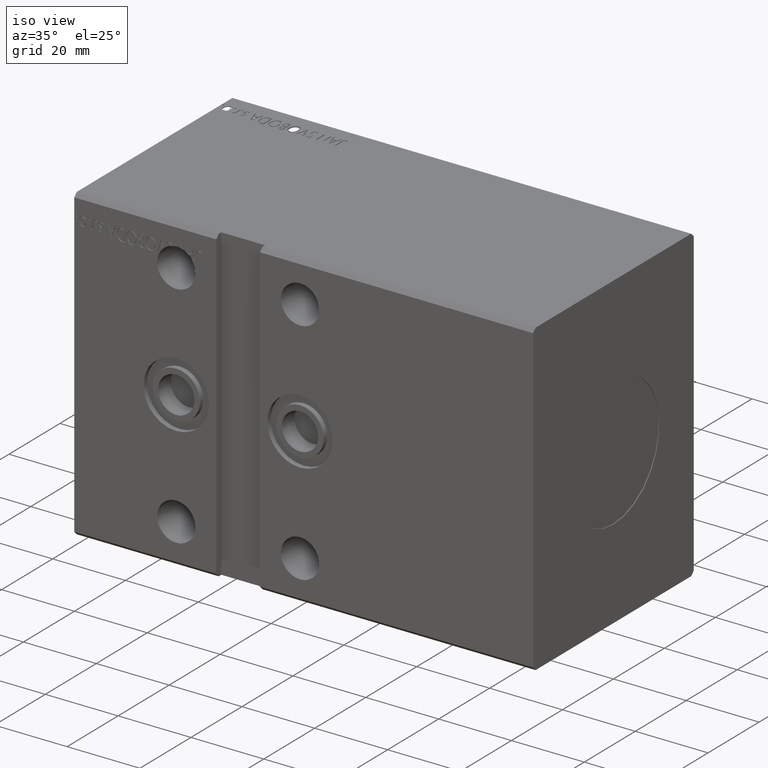
[diagram: clean part render]
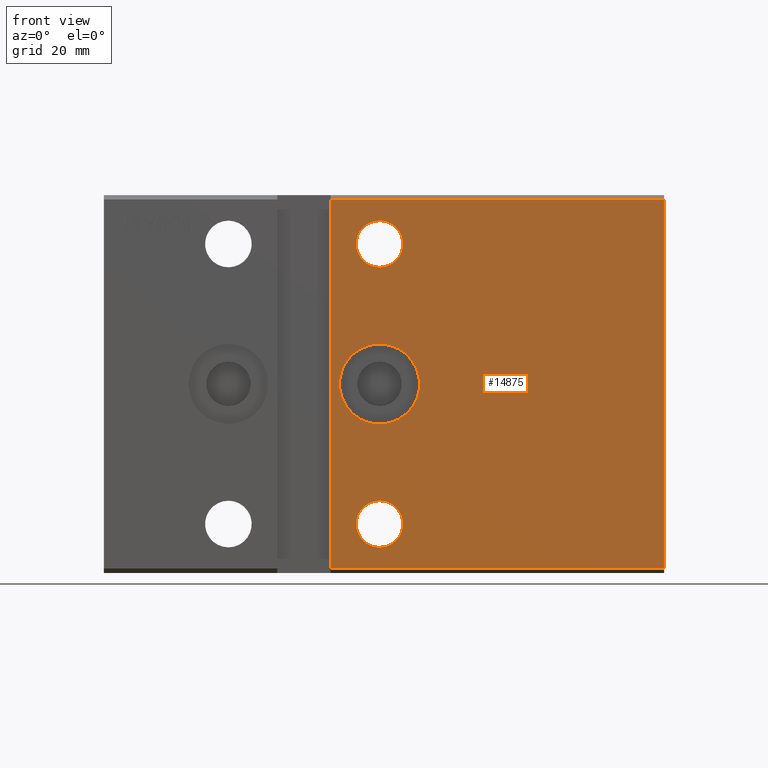
[diagram: tour spotlight — one face highlighted and labeled with its STEP entity id]
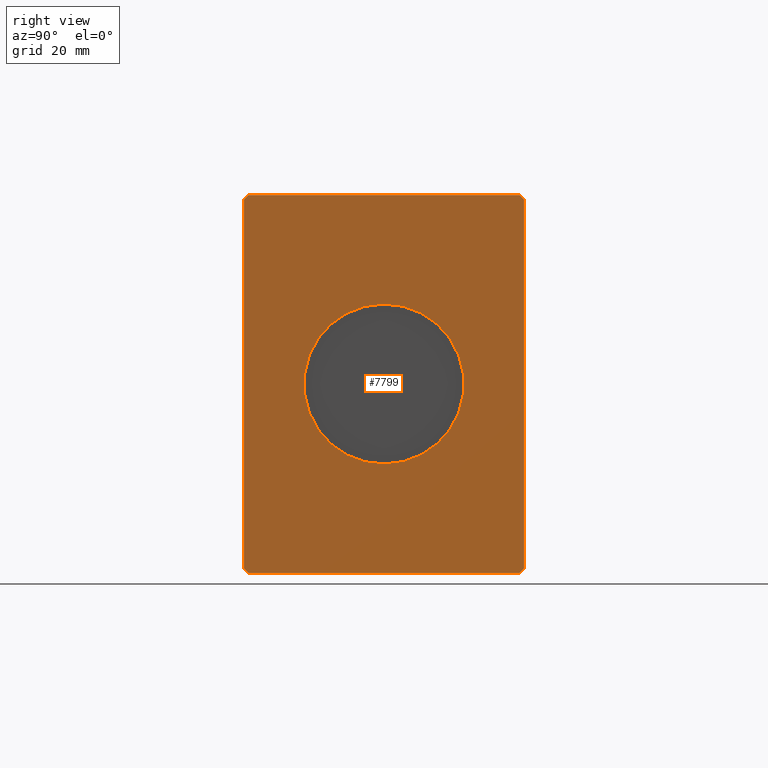
[diagram: tour spotlight — one face highlighted and labeled with its STEP entity id]
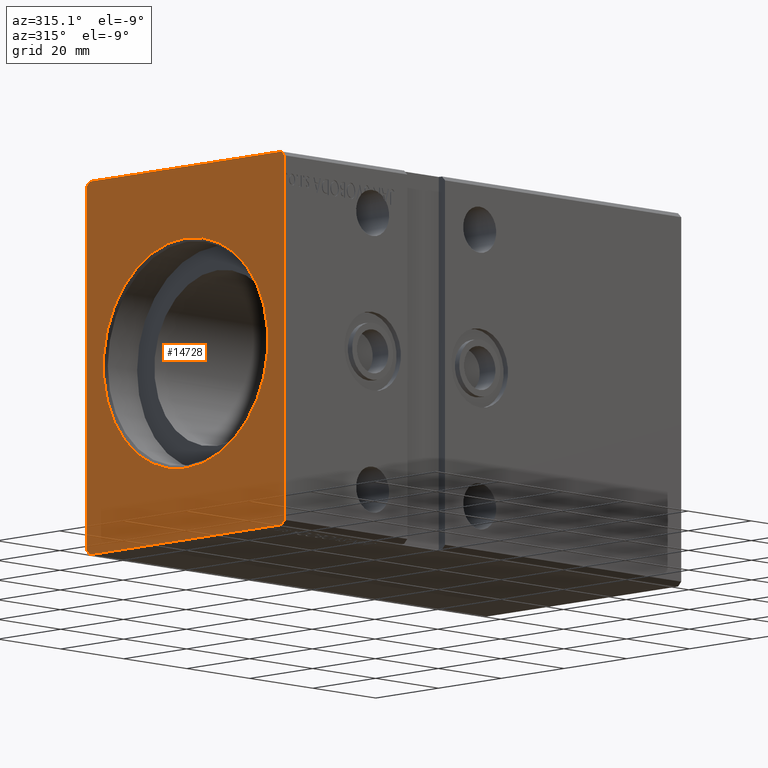
[diagram: tour spotlight — one face highlighted and labeled with its STEP entity id]
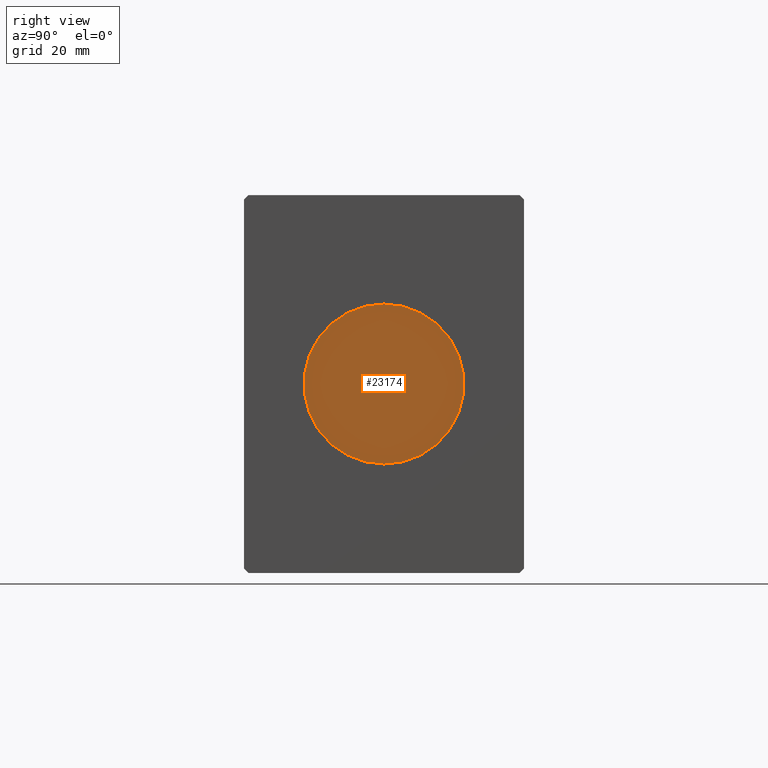
[diagram: tour spotlight — one face highlighted and labeled with its STEP entity id]
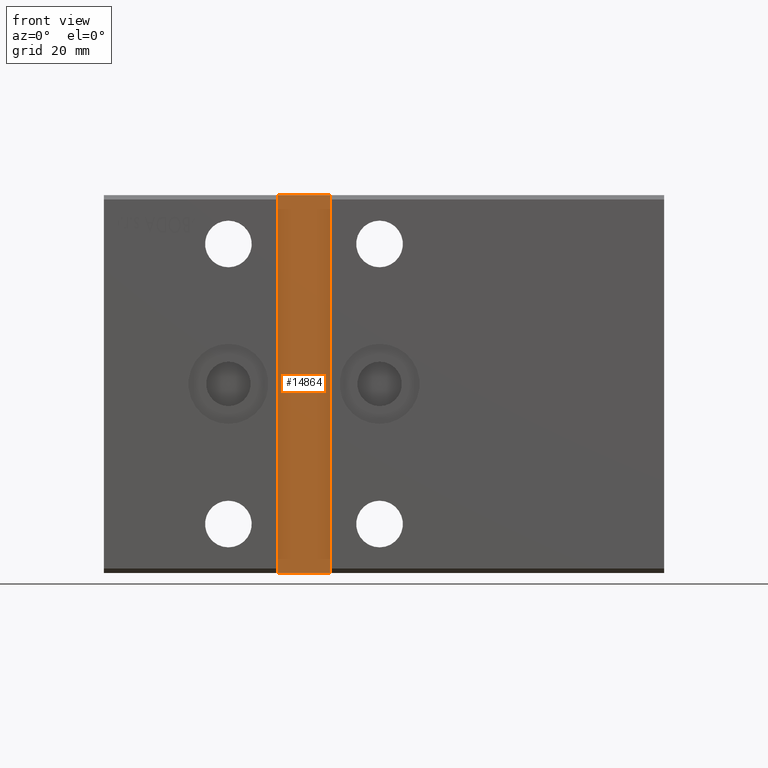
[diagram: tour spotlight — one face highlighted and labeled with its STEP entity id]
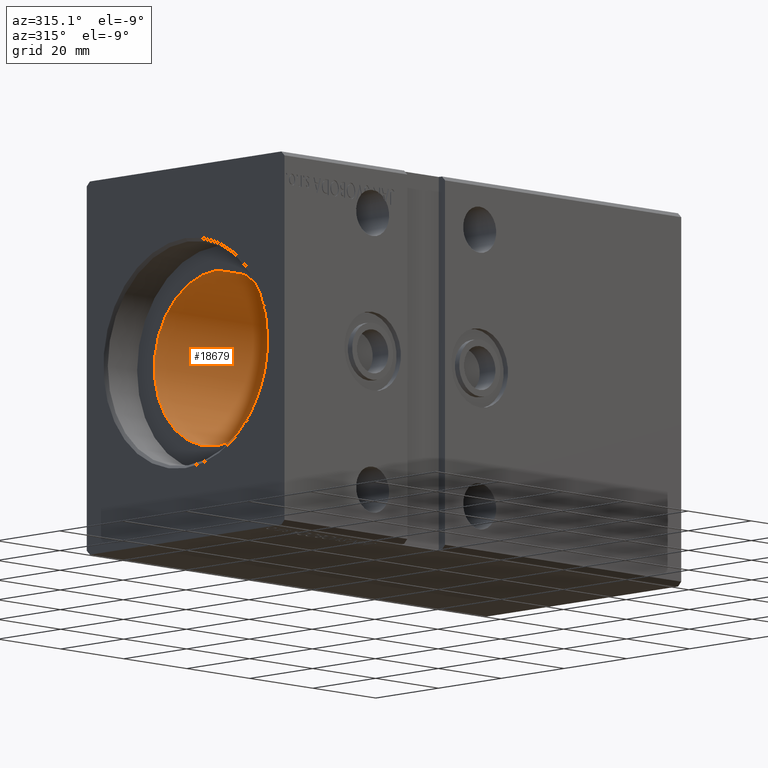
[diagram: tour spotlight — one face highlighted and labeled with its STEP entity id]
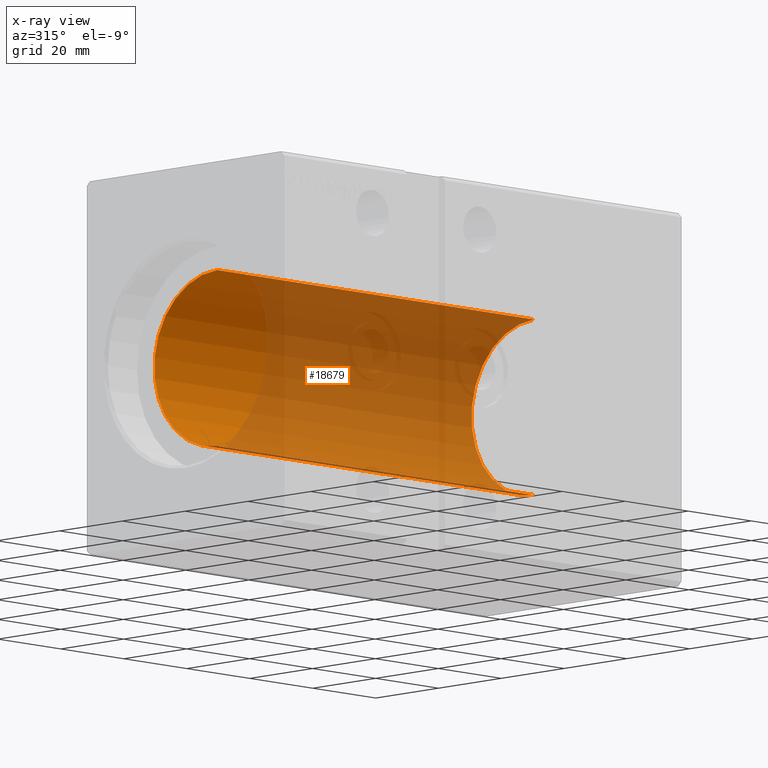
[diagram: x-ray of the same camera — body ghosted, this tour face saturated]
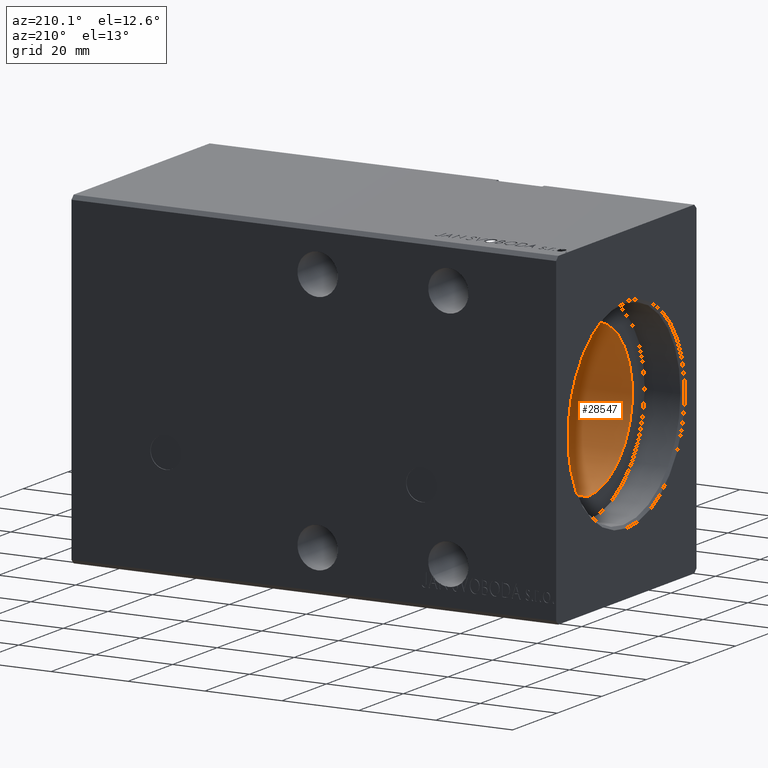
[diagram: tour spotlight — one face highlighted and labeled with its STEP entity id]
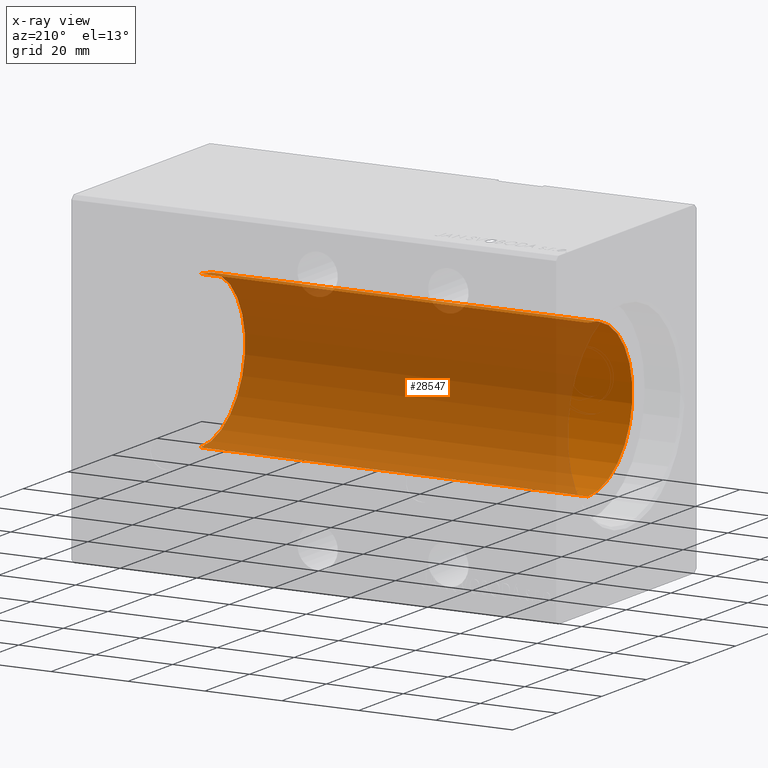
[diagram: x-ray of the same camera — body ghosted, this tour face saturated]
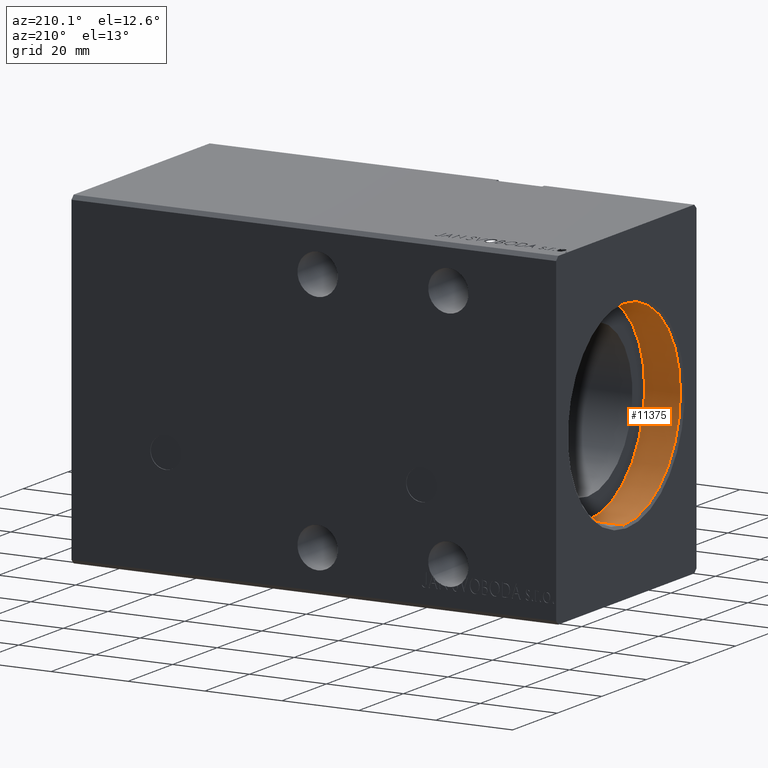
[diagram: tour spotlight — one face highlighted and labeled with its STEP entity id]
A machine part: a face-by-face anatomy tour. The part has 772 B-rep faces; the first image is the clean iso view, then the 8 largest visible faces are spotlighted one at a time (largest first), each with its STEP entity span.

Face 1 — front view, entity #14875. In plain terms, the highlighted planar face has unit normal (-0, 1, 0).
Definition (entity closure, byte-faithful):
#152 = DIRECTION ( 'NONE',  ( -0.000000000000000000, 1.000000000000000000, 0.000000000000000000 ) ) ;
#775 = DIRECTION ( 'NONE',  ( 0.000000000000000000, 0.000000000000000000, 1.000000000000000000 ) ) ;
#793 = CARTESIAN_POINT ( 'NONE',  ( 62.00000000000000711, -31.50000000000000000, -31.50000000000000000 ) ) ;
#1011 = ORIENTED_EDGE ( 'NONE', *, *, #8095, .T. ) ;
#1936 = CARTESIAN_POINT ( 'NONE',  ( 62.00000000000000000, -31.50000000000000000, 26.24999999999999645 ) ) ;
#2300 = EDGE_CURVE ( 'NONE', #32141, #36238, #6024, .T. ) ;
#2637 = FACE_BOUND ( 'NONE', #21555, .T. ) ;
#2684 = VECTOR ( 'NONE', #26664, 1000.000000000000000 ) ;
#3110 = CARTESIAN_POINT ( 'NONE',  ( 62.00000000000000711, -31.50000000000000000, -2.775094786806226635E-15 ) ) ;
#3359 = LINE ( 'NONE', #12810, #9154 ) ;
#6024 = CIRCLE ( 'NONE', #29027, 5.249999999999997335 ) ;
#6438 = CIRCLE ( 'NONE', #11717, 9.000000000000003553 ) ;
#6507 = ORIENTED_EDGE ( 'NONE', *, *, #16858, .F. ) ;
#6524 = CARTESIAN_POINT ( 'NONE',  ( 51.00000000000000000, -31.50000000000000000, 42.49999999999999289 ) ) ;
#6780 = CARTESIAN_POINT ( 'NONE',  ( 62.00000000000000711, -31.50000000000000000, -31.50000000000000000 ) ) ;
#7563 = CARTESIAN_POINT ( 'NONE',  ( 62.00000000000000711, -31.50000000000000000, 9.000000000000000000 ) ) ;
#7939 = LINE ( 'NONE', #38795, #2684 ) ;
#8029 = EDGE_CURVE ( 'NONE', #14210, #22415, #28121, .T. ) ;
#8041 = EDGE_LOOP ( 'NONE', ( #24446, #6507, #24137, #25378 ) ) ;
#8095 = EDGE_CURVE ( 'NONE', #19366, #8506, #6438, .T. ) ;
#8268 = CARTESIAN_POINT ( 'NONE',  ( 62.00000000000000711, -31.50000000000000000, -9.000000000000007105 ) ) ;
#8271 = DIRECTION ( 'NONE',  ( 0.000000000000000000, -1.000000000000000000, -0.000000000000000000 ) ) ;
#8441 = EDGE_CURVE ( 'NONE', #36238, #32141, #26194, .T. ) ;
#8506 = VERTEX_POINT ( 'NONE', #7563 ) ;
#8802 = CARTESIAN_POINT ( 'NONE',  ( 126.0000000000000000, -31.50000000000000000, 41.49999999999999289 ) ) ;
#9154 = VECTOR ( 'NONE', #15900, 1000.000000000000000 ) ;
#9649 = VERTEX_POINT ( 'NONE', #26480 ) ;
#10894 = EDGE_CURVE ( 'NONE', #17370, #9649, #3359, .T. ) ;
#11717 = AXIS2_PLACEMENT_3D ( 'NONE', #3110, #19345, #34370 ) ;
#12262 = CARTESIAN_POINT ( 'NONE',  ( 126.0000000000000000, -31.50000000000000000, -41.50000000000000711 ) ) ;
#12492 = FACE_OUTER_BOUND ( 'NONE', #8041, .T. ) ;
#12634 = EDGE_CURVE ( 'NONE', #22415, #14210, #29556, .T. ) ;
#12810 = CARTESIAN_POINT ( 'NONE',  ( 126.0000000000000000, -31.50000000000000000, 41.49999999999999289 ) ) ;
#13663 = AXIS2_PLACEMENT_3D ( 'NONE', #33975, #8271, #21246 ) ;
#13927 = ORIENTED_EDGE ( 'NONE', *, *, #2300, .T. ) ;
#14210 = VERTEX_POINT ( 'NONE', #24355 ) ;
#14242 = VECTOR ( 'NONE', #40258, 1000.000000000000000 ) ;
#14875 = ADVANCED_FACE ( 'NONE', ( #30810, #2637, #12492, #34482 ), #24652, .F. ) ;
#15057 = CARTESIAN_POINT ( 'NONE',  ( 62.00000000000000711, -31.50000000000000000, -36.75000000000000000 ) ) ;
#15139 = DIRECTION ( 'NONE',  ( -0.000000000000000000, 1.000000000000000000, 5.507058653894625853E-17 ) ) ;
#15335 = CARTESIAN_POINT ( 'NONE',  ( 62.00000000000000711, -31.50000000000000000, -2.775094786806226635E-15 ) ) ;
#15455 = CARTESIAN_POINT ( 'NONE',  ( 62.00000000000000711, -31.50000000000000000, -26.25000000000000355 ) ) ;
#15532 = CARTESIAN_POINT ( 'NONE',  ( 51.00000000000000000, -31.50000000000000000, -41.50000000000000711 ) ) ;
#15759 = LINE ( 'NONE', #25237, #14242 ) ;
#15900 = DIRECTION ( 'NONE',  ( -1.000000000000000000, -0.000000000000000000, -0.000000000000000000 ) ) ;
#15985 = LINE ( 'NONE', #6524, #40416 ) ;
#16858 = EDGE_CURVE ( 'NONE', #29813, #9649, #15985, .T. ) ;
#17370 = VERTEX_POINT ( 'NONE', #30357 ) ;
#19220 = VERTEX_POINT ( 'NONE', #12262 ) ;
#19345 = DIRECTION ( 'NONE',  ( -0.000000000000000000, 1.000000000000000000, 5.507058653894625853E-17 ) ) ;
#19366 = VERTEX_POINT ( 'NONE', #8268 ) ;
#19490 = DIRECTION ( 'NONE',  ( -0.000000000000000000, 1.000000000000000000, 0.000000000000000000 ) ) ;
#19704 = DIRECTION ( 'NONE',  ( 0.000000000000000000, 0.000000000000000000, 1.000000000000000000 ) ) ;
#21246 = DIRECTION ( 'NONE',  ( 0.000000000000000000, 0.000000000000000000, 1.000000000000000000 ) ) ;
#21555 = EDGE_LOOP ( 'NONE', ( #30476, #13927 ) ) ;
#21631 = EDGE_CURVE ( 'NONE', #17370, #19220, #15759, .T. ) ;
#21705 = AXIS2_PLACEMENT_3D ( 'NONE', #28742, #25667, #775 ) ;
#22389 = ORIENTED_EDGE ( 'NONE', *, *, #33418, .T. ) ;
#22415 = VERTEX_POINT ( 'NONE', #1936 ) ;
#24137 = ORIENTED_EDGE ( 'NONE', *, *, #32369, .F. ) ;
#24355 = CARTESIAN_POINT ( 'NONE',  ( 62.00000000000000000, -31.50000000000000000, 36.75000000000000711 ) ) ;
#24446 = ORIENTED_EDGE ( 'NONE', *, *, #10894, .T. ) ;
#24627 = ORIENTED_EDGE ( 'NONE', *, *, #12634, .F. ) ;
#24652 = PLANE ( 'NONE',  #27573 ) ;
#25237 = CARTESIAN_POINT ( 'NONE',  ( 126.0000000000000000, -31.50000000000000000, 41.49999999999999289 ) ) ;
#25258 = DIRECTION ( 'NONE',  ( -0.000000000000000000, -0.000000000000000000, 1.000000000000000000 ) ) ;
#25357 = EDGE_LOOP ( 'NONE', ( #1011, #22389 ) ) ;
#25378 = ORIENTED_EDGE ( 'NONE', *, *, #21631, .F. ) ;
#25667 = DIRECTION ( 'NONE',  ( 0.000000000000000000, -1.000000000000000000, -0.000000000000000000 ) ) ;
#25718 = DIRECTION ( 'NONE',  ( -0.000000000000000000, 1.000000000000000000, 0.000000000000000000 ) ) ;
#26194 = CIRCLE ( 'NONE', #34709, 5.249999999999997335 ) ;
#26480 = CARTESIAN_POINT ( 'NONE',  ( 51.00000000000000000, -31.50000000000000000, 41.49999999999999289 ) ) ;
#26664 = DIRECTION ( 'NONE',  ( -1.000000000000000000, -0.000000000000000000, -0.000000000000000000 ) ) ;
#27573 = AXIS2_PLACEMENT_3D ( 'NONE', #8802, #152, #28526 ) ;
#27705 = DIRECTION ( 'NONE',  ( 0.000000000000000000, 0.000000000000000000, 1.000000000000000000 ) ) ;
#28121 = CIRCLE ( 'NONE', #13663, 5.250000000000004441 ) ;
#28526 = DIRECTION ( 'NONE',  ( 0.000000000000000000, -0.000000000000000000, 1.000000000000000000 ) ) ;
#28742 = CARTESIAN_POINT ( 'NONE',  ( 62.00000000000000000, -31.50000000000000000, 31.50000000000000000 ) ) ;
#29027 = AXIS2_PLACEMENT_3D ( 'NONE', #6780, #25718, #32282 ) ;
#29556 = CIRCLE ( 'NONE', #21705, 5.250000000000004441 ) ;
#29603 = AXIS2_PLACEMENT_3D ( 'NONE', #15335, #15139, #27705 ) ;
#29813 = VERTEX_POINT ( 'NONE', #15532 ) ;
#30357 = CARTESIAN_POINT ( 'NONE',  ( 126.0000000000000000, -31.50000000000000000, 41.49999999999999289 ) ) ;
#30476 = ORIENTED_EDGE ( 'NONE', *, *, #8441, .T. ) ;
#30810 = FACE_BOUND ( 'NONE', #25357, .T. ) ;
#32141 = VERTEX_POINT ( 'NONE', #15455 ) ;
#32282 = DIRECTION ( 'NONE',  ( 0.000000000000000000, 0.000000000000000000, 1.000000000000000000 ) ) ;
#32369 = EDGE_CURVE ( 'NONE', #19220, #29813, #7939, .T. ) ;
#32879 = CIRCLE ( 'NONE', #29603, 9.000000000000003553 ) ;
#33418 = EDGE_CURVE ( 'NONE', #8506, #19366, #32879, .T. ) ;
#33975 = CARTESIAN_POINT ( 'NONE',  ( 62.00000000000000000, -31.50000000000000000, 31.50000000000000000 ) ) ;
#34370 = DIRECTION ( 'NONE',  ( 0.000000000000000000, 0.000000000000000000, 1.000000000000000000 ) ) ;
#34482 = FACE_BOUND ( 'NONE', #39462, .T. ) ;
#34709 = AXIS2_PLACEMENT_3D ( 'NONE', #793, #19490, #19704 ) ;
#35085 = ORIENTED_EDGE ( 'NONE', *, *, #8029, .F. ) ;
#36238 = VERTEX_POINT ( 'NONE', #15057 ) ;
#38795 = CARTESIAN_POINT ( 'NONE',  ( 126.0000000000000000, -31.50000000000000000, -41.50000000000000711 ) ) ;
#39462 = EDGE_LOOP ( 'NONE', ( #24627, #35085 ) ) ;
#40258 = DIRECTION ( 'NONE',  ( 0.000000000000000000, 0.000000000000000000, -1.000000000000000000 ) ) ;
#40416 = VECTOR ( 'NONE', #25258, 1000.000000000000000 ) ;

Face 2 — right view, entity #7799. In plain terms, the highlighted planar face has unit normal (1, 0, 0).
Definition (entity closure, byte-faithful):
#88 = CARTESIAN_POINT ( 'NONE',  ( 126.0000000000000000, -30.50000000000000711, -42.50000000000000711 ) ) ;
#482 = ORIENTED_EDGE ( 'NONE', *, *, #29244, .T. ) ;
#566 = VERTEX_POINT ( 'NONE', #29104 ) ;
#1475 = ORIENTED_EDGE ( 'NONE', *, *, #24987, .T. ) ;
#1626 = DIRECTION ( 'NONE',  ( 0.000000000000000000, 0.7071067811865451302, -0.7071067811865500152 ) ) ;
#2097 = LINE ( 'NONE', #8867, #15252 ) ;
#2235 = EDGE_CURVE ( 'NONE', #11296, #6461, #2097, .T. ) ;
#2389 = VERTEX_POINT ( 'NONE', #23643 ) ;
#2413 = EDGE_CURVE ( 'NONE', #35182, #566, #26420, .T. ) ;
#3432 = DIRECTION ( 'NONE',  ( 0.000000000000000000, 0.000000000000000000, -1.000000000000000000 ) ) ;
#4906 = CARTESIAN_POINT ( 'NONE',  ( 126.0000000000000000, 0.000000000000000000, 0.000000000000000000 ) ) ;
#6461 = VERTEX_POINT ( 'NONE', #8160 ) ;
#6540 = CARTESIAN_POINT ( 'NONE',  ( 126.0000000000000000, 0.000000000000000000, -18.00000000000000000 ) ) ;
#6869 = EDGE_CURVE ( 'NONE', #2389, #17370, #30732, .T. ) ;
#7390 = CARTESIAN_POINT ( 'NONE',  ( 126.0000000000000000, -31.50000000000000000, -41.50000000000000711 ) ) ;
#7799 = ADVANCED_FACE ( 'NONE', ( #21892, #22697 ), #34821, .T. ) ;
#8160 = CARTESIAN_POINT ( 'NONE',  ( 126.0000000000000000, 31.50000000000001421, 41.49999999999999289 ) ) ;
#8327 = ORIENTED_EDGE ( 'NONE', *, *, #2413, .F. ) ;
#8375 = VECTOR ( 'NONE', #14741, 1000.000000000000000 ) ;
#8510 = VECTOR ( 'NONE', #14365, 1000.000000000000114 ) ;
#8831 = ORIENTED_EDGE ( 'NONE', *, *, #31422, .T. ) ;
#8867 = CARTESIAN_POINT ( 'NONE',  ( 126.0000000000000000, 31.50000000000001421, -41.50000000000000711 ) ) ;
#8905 = ORIENTED_EDGE ( 'NONE', *, *, #2235, .T. ) ;
#11296 = VERTEX_POINT ( 'NONE', #34960 ) ;
#11515 = EDGE_CURVE ( 'NONE', #6461, #15841, #17459, .T. ) ;
#12186 = ORIENTED_EDGE ( 'NONE', *, *, #21631, .T. ) ;
#12247 = VERTEX_POINT ( 'NONE', #32074 ) ;
#12262 = CARTESIAN_POINT ( 'NONE',  ( 126.0000000000000000, -31.50000000000000000, -41.50000000000000711 ) ) ;
#12357 = AXIS2_PLACEMENT_3D ( 'NONE', #13016, #35227, #16514 ) ;
#12431 = AXIS2_PLACEMENT_3D ( 'NONE', #31610, #28128, #3432 ) ;
#13016 = CARTESIAN_POINT ( 'NONE',  ( 126.0000000000000000, 0.000000000000000000, 0.000000000000000000 ) ) ;
#13922 = AXIS2_PLACEMENT_3D ( 'NONE', #4906, #33708, #35961 ) ;
#14242 = VECTOR ( 'NONE', #40258, 1000.000000000000000 ) ;
#14365 = DIRECTION ( 'NONE',  ( 0.000000000000000000, -0.7071067811865474617, 0.7071067811865474617 ) ) ;
#14741 = DIRECTION ( 'NONE',  ( 0.000000000000000000, -1.000000000000000000, 0.000000000000000000 ) ) ;
#14893 = CARTESIAN_POINT ( 'NONE',  ( 126.0000000000000000, -30.50000000000000355, 42.49999999999999289 ) ) ;
#15252 = VECTOR ( 'NONE', #23696, 1000.000000000000000 ) ;
#15759 = LINE ( 'NONE', #25237, #14242 ) ;
#15841 = VERTEX_POINT ( 'NONE', #18474 ) ;
#16514 = DIRECTION ( 'NONE',  ( 0.000000000000000000, 0.000000000000000000, -1.000000000000000000 ) ) ;
#17370 = VERTEX_POINT ( 'NONE', #30357 ) ;
#17459 = LINE ( 'NONE', #36998, #8510 ) ;
#17752 = VECTOR ( 'NONE', #36871, 999.9999999999998863 ) ;
#18474 = CARTESIAN_POINT ( 'NONE',  ( 126.0000000000000000, 30.50000000000001421, 42.49999999999999289 ) ) ;
#19123 = EDGE_CURVE ( 'NONE', #15841, #2389, #29760, .T. ) ;
#19220 = VERTEX_POINT ( 'NONE', #12262 ) ;
#19661 = VECTOR ( 'NONE', #1626, 1000.000000000000114 ) ;
#19935 = VERTEX_POINT ( 'NONE', #88 ) ;
#21631 = EDGE_CURVE ( 'NONE', #17370, #19220, #15759, .T. ) ;
#21892 = FACE_BOUND ( 'NONE', #34021, .T. ) ;
#22581 = ORIENTED_EDGE ( 'NONE', *, *, #6869, .T. ) ;
#22697 = FACE_OUTER_BOUND ( 'NONE', #27182, .T. ) ;
#23643 = CARTESIAN_POINT ( 'NONE',  ( 126.0000000000000000, -30.50000000000000355, 42.49999999999999289 ) ) ;
#23696 = DIRECTION ( 'NONE',  ( 0.000000000000000000, 0.000000000000000000, 1.000000000000000000 ) ) ;
#23878 = DIRECTION ( 'NONE',  ( 0.000000000000000000, 1.000000000000000000, 0.000000000000000000 ) ) ;
#24987 = EDGE_CURVE ( 'NONE', #19935, #12247, #40104, .T. ) ;
#25237 = CARTESIAN_POINT ( 'NONE',  ( 126.0000000000000000, -31.50000000000000000, 41.49999999999999289 ) ) ;
#26420 = CIRCLE ( 'NONE', #13922, 18.00000000000000000 ) ;
#27182 = EDGE_LOOP ( 'NONE', ( #35228, #33517, #22581, #12186, #482, #1475, #8831, #8905 ) ) ;
#27663 = DIRECTION ( 'NONE',  ( 0.000000000000000000, -0.7071067811865462405, -0.7071067811865489050 ) ) ;
#27781 = CARTESIAN_POINT ( 'NONE',  ( 126.0000000000000000, -30.50000000000000711, -42.50000000000000711 ) ) ;
#28128 = DIRECTION ( 'NONE',  ( 1.000000000000000000, 0.000000000000000000, 0.000000000000000000 ) ) ;
#28786 = EDGE_CURVE ( 'NONE', #566, #35182, #30841, .T. ) ;
#29104 = CARTESIAN_POINT ( 'NONE',  ( 126.0000000000000000, 2.204364238465235428E-15, 18.00000000000000000 ) ) ;
#29244 = EDGE_CURVE ( 'NONE', #19220, #19935, #35568, .T. ) ;
#29760 = LINE ( 'NONE', #33667, #8375 ) ;
#30290 = LINE ( 'NONE', #36453, #17752 ) ;
#30357 = CARTESIAN_POINT ( 'NONE',  ( 126.0000000000000000, -31.50000000000000000, 41.49999999999999289 ) ) ;
#30732 = LINE ( 'NONE', #14893, #37218 ) ;
#30841 = CIRCLE ( 'NONE', #12431, 18.00000000000000000 ) ;
#31422 = EDGE_CURVE ( 'NONE', #12247, #11296, #30290, .T. ) ;
#31610 = CARTESIAN_POINT ( 'NONE',  ( 126.0000000000000000, 0.000000000000000000, 0.000000000000000000 ) ) ;
#32074 = CARTESIAN_POINT ( 'NONE',  ( 126.0000000000000000, 30.50000000000001776, -42.50000000000000711 ) ) ;
#33517 = ORIENTED_EDGE ( 'NONE', *, *, #19123, .T. ) ;
#33667 = CARTESIAN_POINT ( 'NONE',  ( 126.0000000000000000, 30.50000000000001421, 42.49999999999999289 ) ) ;
#33708 = DIRECTION ( 'NONE',  ( 1.000000000000000000, 0.000000000000000000, 0.000000000000000000 ) ) ;
#34008 = VECTOR ( 'NONE', #23878, 1000.000000000000000 ) ;
#34021 = EDGE_LOOP ( 'NONE', ( #8327, #39189 ) ) ;
#34821 = PLANE ( 'NONE',  #12357 ) ;
#34960 = CARTESIAN_POINT ( 'NONE',  ( 126.0000000000000000, 31.50000000000001421, -41.50000000000000711 ) ) ;
#35182 = VERTEX_POINT ( 'NONE', #6540 ) ;
#35227 = DIRECTION ( 'NONE',  ( 1.000000000000000000, 0.000000000000000000, 0.000000000000000000 ) ) ;
#35228 = ORIENTED_EDGE ( 'NONE', *, *, #11515, .T. ) ;
#35568 = LINE ( 'NONE', #7390, #19661 ) ;
#35961 = DIRECTION ( 'NONE',  ( 0.000000000000000000, 0.000000000000000000, -1.000000000000000000 ) ) ;
#36453 = CARTESIAN_POINT ( 'NONE',  ( 126.0000000000000000, 30.50000000000001776, -42.50000000000000711 ) ) ;
#36871 = DIRECTION ( 'NONE',  ( 0.000000000000000000, 0.7071067811865462405, 0.7071067811865489050 ) ) ;
#36998 = CARTESIAN_POINT ( 'NONE',  ( 126.0000000000000000, 31.50000000000001421, 41.49999999999999289 ) ) ;
#37218 = VECTOR ( 'NONE', #27663, 999.9999999999998863 ) ;
#39189 = ORIENTED_EDGE ( 'NONE', *, *, #28786, .F. ) ;
#40104 = LINE ( 'NONE', #27781, #34008 ) ;
#40258 = DIRECTION ( 'NONE',  ( 0.000000000000000000, 0.000000000000000000, -1.000000000000000000 ) ) ;

Face 3 — auxiliary view, entity #14728. In plain terms, the highlighted planar face has unit normal (1, 0, 0).
Definition (entity closure, byte-faithful):
#35 = ORIENTED_EDGE ( 'NONE', *, *, #2055, .F. ) ;
#993 = LINE ( 'NONE', #29182, #1855 ) ;
#1062 = CARTESIAN_POINT ( 'NONE',  ( 0.000000000000000000, -31.50000000000000000, 41.49999999999999289 ) ) ;
#1855 = VECTOR ( 'NONE', #23410, 999.9999999999998863 ) ;
#2055 = EDGE_CURVE ( 'NONE', #4977, #39530, #23285, .T. ) ;
#2615 = AXIS2_PLACEMENT_3D ( 'NONE', #33276, #17245, #7775 ) ;
#3070 = CARTESIAN_POINT ( 'NONE',  ( 0.000000000000000000, -31.50000000000000000, -41.50000000000000711 ) ) ;
#3762 = CARTESIAN_POINT ( 'NONE',  ( 0.000000000000000000, 31.50000000000001421, 41.49999999999999289 ) ) ;
#4210 = EDGE_CURVE ( 'NONE', #17643, #22763, #32884, .T. ) ;
#4686 = EDGE_CURVE ( 'NONE', #34775, #35311, #20311, .T. ) ;
#4977 = VERTEX_POINT ( 'NONE', #5205 ) ;
#5205 = CARTESIAN_POINT ( 'NONE',  ( 0.000000000000000000, -31.50000000000000000, 41.49999999999999289 ) ) ;
#5450 = DIRECTION ( 'NONE',  ( 1.000000000000000000, 0.000000000000000000, 0.000000000000000000 ) ) ;
#5791 = ORIENTED_EDGE ( 'NONE', *, *, #35199, .F. ) ;
#6720 = DIRECTION ( 'NONE',  ( 0.000000000000000000, 1.000000000000000000, 0.000000000000000000 ) ) ;
#7442 = CARTESIAN_POINT ( 'NONE',  ( 0.000000000000000000, -31.50000000000000000, -41.50000000000000711 ) ) ;
#7609 = EDGE_CURVE ( 'NONE', #22763, #17643, #11051, .T. ) ;
#7775 = DIRECTION ( 'NONE',  ( 0.000000000000000000, 0.000000000000000000, -1.000000000000000000 ) ) ;
#8841 = EDGE_LOOP ( 'NONE', ( #18031, #26524 ) ) ;
#8934 = CARTESIAN_POINT ( 'NONE',  ( 0.000000000000000000, 0.000000000000000000, 0.000000000000000000 ) ) ;
#9700 = VERTEX_POINT ( 'NONE', #17206 ) ;
#9800 = LINE ( 'NONE', #22359, #22943 ) ;
#11051 = CIRCLE ( 'NONE', #39267, 26.20000000000000284 ) ;
#11154 = VECTOR ( 'NONE', #17103, 1000.000000000000114 ) ;
#11379 = CARTESIAN_POINT ( 'NONE',  ( 0.000000000000000000, 0.000000000000000000, 0.000000000000000000 ) ) ;
#11897 = EDGE_CURVE ( 'NONE', #39530, #9700, #17311, .T. ) ;
#12801 = ORIENTED_EDGE ( 'NONE', *, *, #11897, .F. ) ;
#13437 = DIRECTION ( 'NONE',  ( 0.000000000000000000, -0.7071067811865474617, 0.7071067811865474617 ) ) ;
#13764 = EDGE_LOOP ( 'NONE', ( #15062, #5791, #25668, #14853, #12801, #35, #23726, #33547 ) ) ;
#14543 = VECTOR ( 'NONE', #34510, 1000.000000000000000 ) ;
#14728 = ADVANCED_FACE ( 'NONE', ( #21161, #20539 ), #39860, .F. ) ;
#14853 = ORIENTED_EDGE ( 'NONE', *, *, #28825, .F. ) ;
#15062 = ORIENTED_EDGE ( 'NONE', *, *, #31977, .F. ) ;
#17103 = DIRECTION ( 'NONE',  ( 0.000000000000000000, 0.7071067811865451302, -0.7071067811865500152 ) ) ;
#17206 = CARTESIAN_POINT ( 'NONE',  ( 0.000000000000000000, -30.50000000000000711, -42.50000000000000711 ) ) ;
#17245 = DIRECTION ( 'NONE',  ( 1.000000000000000000, 0.000000000000000000, 0.000000000000000000 ) ) ;
#17311 = LINE ( 'NONE', #7442, #11154 ) ;
#17643 = VERTEX_POINT ( 'NONE', #19980 ) ;
#17871 = VECTOR ( 'NONE', #19783, 1000.000000000000000 ) ;
#18031 = ORIENTED_EDGE ( 'NONE', *, *, #7609, .T. ) ;
#18427 = VECTOR ( 'NONE', #20528, 1000.000000000000000 ) ;
#19783 = DIRECTION ( 'NONE',  ( 0.000000000000000000, 0.000000000000000000, -1.000000000000000000 ) ) ;
#19980 = CARTESIAN_POINT ( 'NONE',  ( 0.000000000000000000, 3.208574613766065694E-15, -26.20000000000000284 ) ) ;
#20311 = LINE ( 'NONE', #29373, #18427 ) ;
#20382 = AXIS2_PLACEMENT_3D ( 'NONE', #11379, #39134, #36263 ) ;
#20528 = DIRECTION ( 'NONE',  ( 0.000000000000000000, -1.000000000000000000, 0.000000000000000000 ) ) ;
#20539 = FACE_OUTER_BOUND ( 'NONE', #13764, .T. ) ;
#21161 = FACE_BOUND ( 'NONE', #8841, .T. ) ;
#21442 = VERTEX_POINT ( 'NONE', #31851 ) ;
#22351 = VECTOR ( 'NONE', #13437, 1000.000000000000114 ) ;
#22359 = CARTESIAN_POINT ( 'NONE',  ( 0.000000000000000000, -30.50000000000000711, -42.50000000000000711 ) ) ;
#22763 = VERTEX_POINT ( 'NONE', #33089 ) ;
#22943 = VECTOR ( 'NONE', #6720, 1000.000000000000000 ) ;
#23276 = EDGE_CURVE ( 'NONE', #35311, #4977, #26787, .T. ) ;
#23285 = LINE ( 'NONE', #1062, #17871 ) ;
#23410 = DIRECTION ( 'NONE',  ( 0.000000000000000000, 0.7071067811865462405, 0.7071067811865489050 ) ) ;
#23469 = VECTOR ( 'NONE', #33354, 999.9999999999998863 ) ;
#23726 = ORIENTED_EDGE ( 'NONE', *, *, #23276, .F. ) ;
#25300 = EDGE_CURVE ( 'NONE', #36402, #21442, #993, .T. ) ;
#25668 = ORIENTED_EDGE ( 'NONE', *, *, #25300, .F. ) ;
#26442 = VERTEX_POINT ( 'NONE', #34044 ) ;
#26498 = CARTESIAN_POINT ( 'NONE',  ( 0.000000000000000000, 30.50000000000001776, -42.50000000000000711 ) ) ;
#26524 = ORIENTED_EDGE ( 'NONE', *, *, #4210, .T. ) ;
#26787 = LINE ( 'NONE', #39731, #23469 ) ;
#27768 = CARTESIAN_POINT ( 'NONE',  ( 0.000000000000000000, 31.50000000000001421, -41.50000000000000711 ) ) ;
#28060 = DIRECTION ( 'NONE',  ( 0.000000000000000000, 0.000000000000000000, -1.000000000000000000 ) ) ;
#28825 = EDGE_CURVE ( 'NONE', #9700, #36402, #9800, .T. ) ;
#29182 = CARTESIAN_POINT ( 'NONE',  ( 0.000000000000000000, 30.50000000000001776, -42.50000000000000711 ) ) ;
#29373 = CARTESIAN_POINT ( 'NONE',  ( 0.000000000000000000, 30.50000000000001421, 42.49999999999999289 ) ) ;
#30839 = LINE ( 'NONE', #27768, #14543 ) ;
#31851 = CARTESIAN_POINT ( 'NONE',  ( 0.000000000000000000, 31.50000000000001421, -41.50000000000000711 ) ) ;
#31977 = EDGE_CURVE ( 'NONE', #26442, #34775, #38320, .T. ) ;
#32884 = CIRCLE ( 'NONE', #20382, 26.20000000000000284 ) ;
#33089 = CARTESIAN_POINT ( 'NONE',  ( 0.000000000000000000, 0.000000000000000000, 26.20000000000000284 ) ) ;
#33276 = CARTESIAN_POINT ( 'NONE',  ( 0.000000000000000000, 0.000000000000000000, 0.000000000000000000 ) ) ;
#33354 = DIRECTION ( 'NONE',  ( 0.000000000000000000, -0.7071067811865462405, -0.7071067811865489050 ) ) ;
#33547 = ORIENTED_EDGE ( 'NONE', *, *, #4686, .F. ) ;
#34044 = CARTESIAN_POINT ( 'NONE',  ( 0.000000000000000000, 31.50000000000001421, 41.49999999999999289 ) ) ;
#34510 = DIRECTION ( 'NONE',  ( 0.000000000000000000, 0.000000000000000000, 1.000000000000000000 ) ) ;
#34775 = VERTEX_POINT ( 'NONE', #35586 ) ;
#35199 = EDGE_CURVE ( 'NONE', #21442, #26442, #30839, .T. ) ;
#35311 = VERTEX_POINT ( 'NONE', #35733 ) ;
#35586 = CARTESIAN_POINT ( 'NONE',  ( 0.000000000000000000, 30.50000000000001421, 42.49999999999999289 ) ) ;
#35733 = CARTESIAN_POINT ( 'NONE',  ( 0.000000000000000000, -30.50000000000000355, 42.49999999999999289 ) ) ;
#36263 = DIRECTION ( 'NONE',  ( 0.000000000000000000, 0.000000000000000000, -1.000000000000000000 ) ) ;
#36402 = VERTEX_POINT ( 'NONE', #26498 ) ;
#38320 = LINE ( 'NONE', #3762, #22351 ) ;
#39134 = DIRECTION ( 'NONE',  ( 1.000000000000000000, 0.000000000000000000, 0.000000000000000000 ) ) ;
#39267 = AXIS2_PLACEMENT_3D ( 'NONE', #8934, #5450, #28060 ) ;
#39530 = VERTEX_POINT ( 'NONE', #3070 ) ;
#39731 = CARTESIAN_POINT ( 'NONE',  ( 0.000000000000000000, -30.50000000000000355, 42.49999999999999289 ) ) ;
#39860 = PLANE ( 'NONE',  #2615 ) ;

Face 4 — right view, entity #23174. In plain terms, the highlighted planar face has unit normal (1, 0, 0).
Definition (entity closure, byte-faithful):
#6838 = DIRECTION ( 'NONE',  ( 1.000000000000000000, 0.000000000000000000, 0.000000000000000000 ) ) ;
#7145 = EDGE_CURVE ( 'NONE', #26772, #28052, #26809, .T. ) ;
#11797 = CARTESIAN_POINT ( 'NONE',  ( 125.7999999999999972, 0.000000000000000000, -18.00000000000000000 ) ) ;
#14096 = ORIENTED_EDGE ( 'NONE', *, *, #26531, .T. ) ;
#19379 = DIRECTION ( 'NONE',  ( 0.000000000000000000, 0.000000000000000000, -1.000000000000000000 ) ) ;
#21031 = CARTESIAN_POINT ( 'NONE',  ( 125.7999999999999972, 0.000000000000000000, 0.000000000000000000 ) ) ;
#22486 = FACE_OUTER_BOUND ( 'NONE', #30939, .T. ) ;
#23174 = ADVANCED_FACE ( 'NONE', ( #22486 ), #29461, .T. ) ;
#23561 = CIRCLE ( 'NONE', #30131, 18.00000000000000000 ) ;
#25975 = CARTESIAN_POINT ( 'NONE',  ( 125.7999999999999972, 0.000000000000000000, 0.000000000000000000 ) ) ;
#26531 = EDGE_CURVE ( 'NONE', #28052, #26772, #23561, .T. ) ;
#26772 = VERTEX_POINT ( 'NONE', #34147 ) ;
#26809 = CIRCLE ( 'NONE', #27489, 18.00000000000000000 ) ;
#27013 = ORIENTED_EDGE ( 'NONE', *, *, #7145, .T. ) ;
#27408 = DIRECTION ( 'NONE',  ( 1.000000000000000000, 0.000000000000000000, 0.000000000000000000 ) ) ;
#27489 = AXIS2_PLACEMENT_3D ( 'NONE', #21031, #27408, #40140 ) ;
#28052 = VERTEX_POINT ( 'NONE', #11797 ) ;
#29461 = PLANE ( 'NONE',  #35926 ) ;
#30131 = AXIS2_PLACEMENT_3D ( 'NONE', #40607, #40410, #30969 ) ;
#30939 = EDGE_LOOP ( 'NONE', ( #14096, #27013 ) ) ;
#30969 = DIRECTION ( 'NONE',  ( 0.000000000000000000, 0.000000000000000000, -1.000000000000000000 ) ) ;
#34147 = CARTESIAN_POINT ( 'NONE',  ( 125.7999999999999972, 2.204364238465235428E-15, 18.00000000000000000 ) ) ;
#35926 = AXIS2_PLACEMENT_3D ( 'NONE', #25975, #6838, #19379 ) ;
#40140 = DIRECTION ( 'NONE',  ( 0.000000000000000000, 0.000000000000000000, -1.000000000000000000 ) ) ;
#40410 = DIRECTION ( 'NONE',  ( 1.000000000000000000, 0.000000000000000000, 0.000000000000000000 ) ) ;
#40607 = CARTESIAN_POINT ( 'NONE',  ( 125.7999999999999972, 0.000000000000000000, 0.000000000000000000 ) ) ;

Face 5 — front view, entity #14864. In plain terms, the highlighted planar face has unit normal (0, -1, 0).
Definition (entity closure, byte-faithful):
#330 = EDGE_LOOP ( 'NONE', ( #31457, #6300, #3019, #13024 ) ) ;
#1045 = LINE ( 'NONE', #26757, #35550 ) ;
#1577 = EDGE_CURVE ( 'NONE', #40314, #30159, #26520, .T. ) ;
#3019 = ORIENTED_EDGE ( 'NONE', *, *, #3841, .T. ) ;
#3841 = EDGE_CURVE ( 'NONE', #30159, #4288, #20461, .T. ) ;
#4288 = VERTEX_POINT ( 'NONE', #28019 ) ;
#6300 = ORIENTED_EDGE ( 'NONE', *, *, #1577, .T. ) ;
#7774 = CARTESIAN_POINT ( 'NONE',  ( 51.00000000000000000, -29.50000000000000000, -42.50000000000000711 ) ) ;
#11118 = DIRECTION ( 'NONE',  ( 1.000000000000000000, 0.000000000000000000, 0.000000000000000000 ) ) ;
#13024 = ORIENTED_EDGE ( 'NONE', *, *, #39364, .T. ) ;
#14359 = CARTESIAN_POINT ( 'NONE',  ( 39.00000000000000000, -29.50000000000000000, 42.49999999999999289 ) ) ;
#14864 = ADVANCED_FACE ( 'NONE', ( #15173 ), #28126, .T. ) ;
#15173 = FACE_OUTER_BOUND ( 'NONE', #330, .T. ) ;
#15370 = DIRECTION ( 'NONE',  ( 0.000000000000000000, -1.000000000000000000, 0.000000000000000000 ) ) ;
#15766 = DIRECTION ( 'NONE',  ( 0.000000000000000000, -0.000000000000000000, -1.000000000000000000 ) ) ;
#20295 = AXIS2_PLACEMENT_3D ( 'NONE', #31397, #15370, #15766 ) ;
#20461 = LINE ( 'NONE', #33003, #38114 ) ;
#22520 = CARTESIAN_POINT ( 'NONE',  ( 51.00000000000000000, -29.50000000000000000, 42.49999999999999289 ) ) ;
#23716 = VECTOR ( 'NONE', #34252, 1000.000000000000000 ) ;
#25605 = LINE ( 'NONE', #22520, #23716 ) ;
#26520 = LINE ( 'NONE', #14359, #31656 ) ;
#26757 = CARTESIAN_POINT ( 'NONE',  ( 39.00000000000002132, -29.50000000000000000, -42.50000000000000711 ) ) ;
#28019 = CARTESIAN_POINT ( 'NONE',  ( 39.00000000000002132, -29.50000000000000000, -42.50000000000000711 ) ) ;
#28126 = PLANE ( 'NONE',  #20295 ) ;
#30159 = VERTEX_POINT ( 'NONE', #30731 ) ;
#30731 = CARTESIAN_POINT ( 'NONE',  ( 39.00000000000000000, -29.50000000000000000, 42.49999999999999289 ) ) ;
#31397 = CARTESIAN_POINT ( 'NONE',  ( 0.000000000000000000, -29.50000000000000000, 1.101411730778925047E-16 ) ) ;
#31457 = ORIENTED_EDGE ( 'NONE', *, *, #32512, .T. ) ;
#31656 = VECTOR ( 'NONE', #33496, 1000.000000000000000 ) ;
#32512 = EDGE_CURVE ( 'NONE', #40393, #40314, #25605, .T. ) ;
#33003 = CARTESIAN_POINT ( 'NONE',  ( 39.00000000000000000, -29.50000000000000000, 42.49999999999999289 ) ) ;
#33496 = DIRECTION ( 'NONE',  ( -1.000000000000000000, -0.000000000000000000, -0.000000000000000000 ) ) ;
#34252 = DIRECTION ( 'NONE',  ( -0.000000000000000000, -0.000000000000000000, 1.000000000000000000 ) ) ;
#35550 = VECTOR ( 'NONE', #11118, 1000.000000000000000 ) ;
#37630 = CARTESIAN_POINT ( 'NONE',  ( 51.00000000000000000, -29.50000000000000000, 42.49999999999999289 ) ) ;
#38114 = VECTOR ( 'NONE', #39790, 1000.000000000000000 ) ;
#39364 = EDGE_CURVE ( 'NONE', #4288, #40393, #1045, .T. ) ;
#39790 = DIRECTION ( 'NONE',  ( 2.449021377849609697E-16, 0.000000000000000000, -1.000000000000000000 ) ) ;
#40314 = VERTEX_POINT ( 'NONE', #37630 ) ;
#40393 = VERTEX_POINT ( 'NONE', #7774 ) ;

Face 6 — auxiliary view, entity #18679. An x-ray twin of the same camera follows (body ghosted, this face saturated) — the face is partly hidden behind the body. In plain terms, the highlighted cylindrical surface (partial cylindrical patch) has radius 20 mm, axis along (-1, -0, -0).
Definition (entity closure, byte-faithful):
#416 = CARTESIAN_POINT ( 'NONE',  ( 110.7000000000000028, 0.000000000000000000, 0.000000000000000000 ) ) ;
#538 = VECTOR ( 'NONE', #37309, 1000.000000000000000 ) ;
#4150 = CARTESIAN_POINT ( 'NONE',  ( 9.999999999999994671, 2.449293598294706513E-15, -20.00000000000000000 ) ) ;
#5478 = DIRECTION ( 'NONE',  ( 0.000000000000000000, 0.000000000000000000, 1.000000000000000000 ) ) ;
#5844 = CARTESIAN_POINT ( 'NONE',  ( 110.7000000000000028, 0.000000000000000000, 20.00000000000000000 ) ) ;
#6664 = CIRCLE ( 'NONE', #11934, 20.00000000000000000 ) ;
#7046 = AXIS2_PLACEMENT_3D ( 'NONE', #416, #10074, #34156 ) ;
#7622 = EDGE_CURVE ( 'NONE', #13906, #12722, #14902, .T. ) ;
#7660 = ORIENTED_EDGE ( 'NONE', *, *, #7622, .T. ) ;
#10074 = DIRECTION ( 'NONE',  ( -1.000000000000000000, -0.000000000000000000, -0.000000000000000000 ) ) ;
#11647 = CARTESIAN_POINT ( 'NONE',  ( 110.7000000000000028, 0.000000000000000000, 0.000000000000000000 ) ) ;
#11934 = AXIS2_PLACEMENT_3D ( 'NONE', #33489, #36372, #17656 ) ;
#12722 = VERTEX_POINT ( 'NONE', #17835 ) ;
#13906 = VERTEX_POINT ( 'NONE', #21712 ) ;
#14902 = LINE ( 'NONE', #5844, #538 ) ;
#15730 = AXIS2_PLACEMENT_3D ( 'NONE', #11647, #17824, #5478 ) ;
#16158 = ORIENTED_EDGE ( 'NONE', *, *, #17984, .F. ) ;
#16369 = CIRCLE ( 'NONE', #15730, 20.00000000000000000 ) ;
#16634 = VERTEX_POINT ( 'NONE', #4150 ) ;
#16692 = CARTESIAN_POINT ( 'NONE',  ( 110.7000000000000028, 2.449293598294706513E-15, -20.00000000000000000 ) ) ;
#17656 = DIRECTION ( 'NONE',  ( 0.000000000000000000, 0.000000000000000000, 1.000000000000000000 ) ) ;
#17824 = DIRECTION ( 'NONE',  ( -1.000000000000000000, 0.000000000000000000, 0.000000000000000000 ) ) ;
#17835 = CARTESIAN_POINT ( 'NONE',  ( 9.999999999999994671, 0.000000000000000000, 20.00000000000000000 ) ) ;
#17984 = EDGE_CURVE ( 'NONE', #32903, #16634, #25914, .T. ) ;
#18534 = CYLINDRICAL_SURFACE ( 'NONE', #7046, 20.00000000000000000 ) ;
#18679 = ADVANCED_FACE ( 'NONE', ( #22431 ), #18534, .F. ) ;
#21712 = CARTESIAN_POINT ( 'NONE',  ( 110.7000000000000028, 0.000000000000000000, 20.00000000000000000 ) ) ;
#22431 = FACE_OUTER_BOUND ( 'NONE', #36820, .T. ) ;
#22825 = VECTOR ( 'NONE', #39406, 1000.000000000000000 ) ;
#25914 = LINE ( 'NONE', #35354, #22825 ) ;
#29570 = EDGE_CURVE ( 'NONE', #13906, #32903, #16369, .T. ) ;
#31088 = ORIENTED_EDGE ( 'NONE', *, *, #40558, .T. ) ;
#32903 = VERTEX_POINT ( 'NONE', #16692 ) ;
#33250 = ORIENTED_EDGE ( 'NONE', *, *, #29570, .F. ) ;
#33489 = CARTESIAN_POINT ( 'NONE',  ( 9.999999999999994671, 0.000000000000000000, 0.000000000000000000 ) ) ;
#34156 = DIRECTION ( 'NONE',  ( 0.000000000000000000, 0.000000000000000000, 1.000000000000000000 ) ) ;
#35354 = CARTESIAN_POINT ( 'NONE',  ( 110.7000000000000028, 2.449293598294706513E-15, -20.00000000000000000 ) ) ;
#36372 = DIRECTION ( 'NONE',  ( -1.000000000000000000, 0.000000000000000000, 0.000000000000000000 ) ) ;
#36820 = EDGE_LOOP ( 'NONE', ( #16158, #33250, #7660, #31088 ) ) ;
#37309 = DIRECTION ( 'NONE',  ( -1.000000000000000000, -0.000000000000000000, -0.000000000000000000 ) ) ;
#39406 = DIRECTION ( 'NONE',  ( -1.000000000000000000, -0.000000000000000000, -0.000000000000000000 ) ) ;
#40558 = EDGE_CURVE ( 'NONE', #12722, #16634, #6664, .T. ) ;

Face 7 — auxiliary view, entity #28547. An x-ray twin of the same camera follows (body ghosted, this face saturated) — the face is partly hidden behind the body. In plain terms, the highlighted cylindrical surface (partial cylindrical patch) has radius 20 mm, axis along (-1, -0, -0).
Definition (entity closure, byte-faithful):
#182 = ORIENTED_EDGE ( 'NONE', *, *, #17984, .T. ) ;
#538 = VECTOR ( 'NONE', #37309, 1000.000000000000000 ) ;
#1408 = AXIS2_PLACEMENT_3D ( 'NONE', #24244, #23838, #33693 ) ;
#4150 = CARTESIAN_POINT ( 'NONE',  ( 9.999999999999994671, 2.449293598294706513E-15, -20.00000000000000000 ) ) ;
#5844 = CARTESIAN_POINT ( 'NONE',  ( 110.7000000000000028, 0.000000000000000000, 20.00000000000000000 ) ) ;
#6957 = DIRECTION ( 'NONE',  ( 0.000000000000000000, 0.000000000000000000, 1.000000000000000000 ) ) ;
#7028 = ORIENTED_EDGE ( 'NONE', *, *, #7622, .F. ) ;
#7622 = EDGE_CURVE ( 'NONE', #13906, #12722, #14902, .T. ) ;
#8997 = CARTESIAN_POINT ( 'NONE',  ( 110.7000000000000028, 0.000000000000000000, 0.000000000000000000 ) ) ;
#9851 = CARTESIAN_POINT ( 'NONE',  ( 9.999999999999994671, 0.000000000000000000, 0.000000000000000000 ) ) ;
#12568 = CIRCLE ( 'NONE', #1408, 20.00000000000000000 ) ;
#12722 = VERTEX_POINT ( 'NONE', #17835 ) ;
#13906 = VERTEX_POINT ( 'NONE', #21712 ) ;
#14902 = LINE ( 'NONE', #5844, #538 ) ;
#16634 = VERTEX_POINT ( 'NONE', #4150 ) ;
#16692 = CARTESIAN_POINT ( 'NONE',  ( 110.7000000000000028, 2.449293598294706513E-15, -20.00000000000000000 ) ) ;
#17835 = CARTESIAN_POINT ( 'NONE',  ( 9.999999999999994671, 0.000000000000000000, 20.00000000000000000 ) ) ;
#17868 = DIRECTION ( 'NONE',  ( -1.000000000000000000, -0.000000000000000000, -0.000000000000000000 ) ) ;
#17984 = EDGE_CURVE ( 'NONE', #32903, #16634, #25914, .T. ) ;
#19637 = AXIS2_PLACEMENT_3D ( 'NONE', #8997, #17868, #27933 ) ;
#21712 = CARTESIAN_POINT ( 'NONE',  ( 110.7000000000000028, 0.000000000000000000, 20.00000000000000000 ) ) ;
#22825 = VECTOR ( 'NONE', #39406, 1000.000000000000000 ) ;
#23838 = DIRECTION ( 'NONE',  ( -1.000000000000000000, 0.000000000000000000, 0.000000000000000000 ) ) ;
#24244 = CARTESIAN_POINT ( 'NONE',  ( 110.7000000000000028, 0.000000000000000000, 0.000000000000000000 ) ) ;
#24654 = CYLINDRICAL_SURFACE ( 'NONE', #19637, 20.00000000000000000 ) ;
#25914 = LINE ( 'NONE', #35354, #22825 ) ;
#27335 = FACE_OUTER_BOUND ( 'NONE', #39599, .T. ) ;
#27933 = DIRECTION ( 'NONE',  ( 0.000000000000000000, 0.000000000000000000, 1.000000000000000000 ) ) ;
#28547 = ADVANCED_FACE ( 'NONE', ( #27335 ), #24654, .F. ) ;
#28982 = CIRCLE ( 'NONE', #33602, 20.00000000000000000 ) ;
#29685 = ORIENTED_EDGE ( 'NONE', *, *, #40539, .F. ) ;
#32903 = VERTEX_POINT ( 'NONE', #16692 ) ;
#33602 = AXIS2_PLACEMENT_3D ( 'NONE', #9851, #34523, #6957 ) ;
#33693 = DIRECTION ( 'NONE',  ( 0.000000000000000000, 0.000000000000000000, 1.000000000000000000 ) ) ;
#34523 = DIRECTION ( 'NONE',  ( -1.000000000000000000, 0.000000000000000000, 0.000000000000000000 ) ) ;
#35354 = CARTESIAN_POINT ( 'NONE',  ( 110.7000000000000028, 2.449293598294706513E-15, -20.00000000000000000 ) ) ;
#35786 = ORIENTED_EDGE ( 'NONE', *, *, #39504, .T. ) ;
#37309 = DIRECTION ( 'NONE',  ( -1.000000000000000000, -0.000000000000000000, -0.000000000000000000 ) ) ;
#39406 = DIRECTION ( 'NONE',  ( -1.000000000000000000, -0.000000000000000000, -0.000000000000000000 ) ) ;
#39504 = EDGE_CURVE ( 'NONE', #16634, #12722, #28982, .T. ) ;
#39599 = EDGE_LOOP ( 'NONE', ( #29685, #182, #35786, #7028 ) ) ;
#40539 = EDGE_CURVE ( 'NONE', #32903, #13906, #12568, .T. ) ;

Face 8 — auxiliary view, entity #11375. In plain terms, the highlighted cylindrical surface (partial cylindrical patch) has radius 25.5 mm, axis along (-1, -0, -0).
Definition (entity closure, byte-faithful):
#622 = AXIS2_PLACEMENT_3D ( 'NONE', #10475, #39247, #39463 ) ;
#1013 = DIRECTION ( 'NONE',  ( 0.000000000000000000, 0.000000000000000000, 1.000000000000000000 ) ) ;
#1627 = CARTESIAN_POINT ( 'NONE',  ( 10.00000000000000000, 0.000000000000000000, 0.000000000000000000 ) ) ;
#2911 = DIRECTION ( 'NONE',  ( -1.000000000000000000, 0.000000000000000000, 0.000000000000000000 ) ) ;
#2925 = EDGE_CURVE ( 'NONE', #24958, #34788, #5676, .T. ) ;
#3037 = LINE ( 'NONE', #9211, #25003 ) ;
#4099 = DIRECTION ( 'NONE',  ( -1.000000000000000000, -0.000000000000000000, -0.000000000000000000 ) ) ;
#4707 = FACE_OUTER_BOUND ( 'NONE', #15360, .T. ) ;
#5676 = LINE ( 'NONE', #18226, #30449 ) ;
#6617 = CARTESIAN_POINT ( 'NONE',  ( 10.00000000000000000, 0.000000000000000000, 25.50000000000000000 ) ) ;
#7186 = EDGE_CURVE ( 'NONE', #24958, #14334, #30087, .T. ) ;
#9211 = CARTESIAN_POINT ( 'NONE',  ( 10.00000000000000000, 0.000000000000000000, 25.50000000000000000 ) ) ;
#10475 = CARTESIAN_POINT ( 'NONE',  ( 0.6999999999999922951, 0.000000000000000000, 0.000000000000000000 ) ) ;
#11375 = ADVANCED_FACE ( 'NONE', ( #4707 ), #17254, .F. ) ;
#14334 = VERTEX_POINT ( 'NONE', #6617 ) ;
#14999 = AXIS2_PLACEMENT_3D ( 'NONE', #25731, #2911, #28605 ) ;
#15360 = EDGE_LOOP ( 'NONE', ( #34559, #15948, #33953, #25332 ) ) ;
#15948 = ORIENTED_EDGE ( 'NONE', *, *, #2925, .T. ) ;
#17254 = CYLINDRICAL_SURFACE ( 'NONE', #40047, 25.50000000000000000 ) ;
#18226 = CARTESIAN_POINT ( 'NONE',  ( 10.00000000000000000, 3.122849337825750222E-15, -25.50000000000000000 ) ) ;
#19950 = CARTESIAN_POINT ( 'NONE',  ( 0.6999999999999922951, 3.122849337825750222E-15, -25.50000000000000000 ) ) ;
#20309 = CIRCLE ( 'NONE', #622, 25.50000000000000000 ) ;
#21773 = DIRECTION ( 'NONE',  ( -1.000000000000000000, -0.000000000000000000, -0.000000000000000000 ) ) ;
#24958 = VERTEX_POINT ( 'NONE', #37215 ) ;
#25003 = VECTOR ( 'NONE', #21773, 1000.000000000000000 ) ;
#25332 = ORIENTED_EDGE ( 'NONE', *, *, #33060, .F. ) ;
#25731 = CARTESIAN_POINT ( 'NONE',  ( 10.00000000000000000, 0.000000000000000000, 0.000000000000000000 ) ) ;
#26604 = VERTEX_POINT ( 'NONE', #34436 ) ;
#28605 = DIRECTION ( 'NONE',  ( 0.000000000000000000, 0.000000000000000000, 1.000000000000000000 ) ) ;
#29213 = EDGE_CURVE ( 'NONE', #34788, #26604, #20309, .T. ) ;
#30087 = CIRCLE ( 'NONE', #14999, 25.50000000000000000 ) ;
#30449 = VECTOR ( 'NONE', #34262, 1000.000000000000000 ) ;
#33060 = EDGE_CURVE ( 'NONE', #14334, #26604, #3037, .T. ) ;
#33953 = ORIENTED_EDGE ( 'NONE', *, *, #29213, .T. ) ;
#34262 = DIRECTION ( 'NONE',  ( -1.000000000000000000, -0.000000000000000000, -0.000000000000000000 ) ) ;
#34436 = CARTESIAN_POINT ( 'NONE',  ( 0.6999999999999922951, 0.000000000000000000, 25.50000000000000000 ) ) ;
#34559 = ORIENTED_EDGE ( 'NONE', *, *, #7186, .F. ) ;
#34788 = VERTEX_POINT ( 'NONE', #19950 ) ;
#37215 = CARTESIAN_POINT ( 'NONE',  ( 10.00000000000000000, 3.122849337825750222E-15, -25.50000000000000000 ) ) ;
#39247 = DIRECTION ( 'NONE',  ( -1.000000000000000000, 0.000000000000000000, 0.000000000000000000 ) ) ;
#39463 = DIRECTION ( 'NONE',  ( 0.000000000000000000, 0.000000000000000000, -1.000000000000000000 ) ) ;
#40047 = AXIS2_PLACEMENT_3D ( 'NONE', #1627, #4099, #1013 ) ;